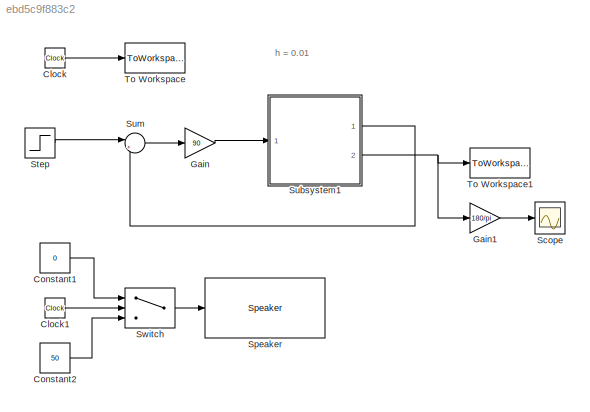
MODEL slx_ebd5c9f883c2
KIND model
CONFIG AbsTol = auto
CONFIG EnableMultiTasking = on
CONFIG FixedStep = auto
CONFIG MaxStep = auto
CONFIG MinStep = auto
CONFIG RelTol = 1e-3
CONFIG SampleTimeConstraint = Unconstrained
CONFIG Solver = ode45
CONFIG SolverName = ode45
CONFIG StartTime = 0.0
CONFIG StopTime = 10.0
BLOCK [Clock] Clock
BLOCK [Clock] Clock1
BLOCK [Constant] Constant1
  Value = 0
BLOCK [Constant] Constant2
  Value = 50
BLOCK [Gain] Gain
  Gain = 90
  OutDataTypeStr = Inherit: Inherit via internal rule
  ParamDataTypeStr = Inherit: Inherit via internal rule
  SaturateOnIntegerOverflow = off
BLOCK [Gain] Gain1
  Gain = 180/pi
  OutDataTypeStr = Inherit: Inherit via internal rule
  ParamDataTypeStr = Inherit: Inherit via internal rule
  SaturateOnIntegerOverflow = off
BLOCK [Scope] Scope
  Floating = off
  NumInputPorts = 1
  Ports = [1]
  ScopeSpecificationString = Simulink.scopes.TimeScopeBlockCfg('CurrentConfiguration', extmgr.ConfigurationSet(extmgr.Configuration('Core','General UI',true),extmgr.Configuration('Core','Source UI',true),extmgr.Configuration('Sources','WiredSimulink',true,'DataLoggingSaveFormat','StructureWithTime','DataLoggingLimitDataPoints',true,'DataLoggingDecimation','1','DataLoggingDecimateData',true),extmgr.Configuration('Visuals','Tim...<+1617ch>
BLOCK [Reference] Speaker  REF=legoev3lib/Speaker
  Ports = [1]
  SourceBlock = legoev3lib/Speaker
  SourceProductBaseCode = LEGOEV3
  SourceProductName = Simulink Support Package for LEGO MINDSTORMS EV3 Hardware
  SourceType = LEGO MINDSTORMS EV3 Speaker
BLOCK [Step] Step
  After = pi/3
  SampleTime = 0
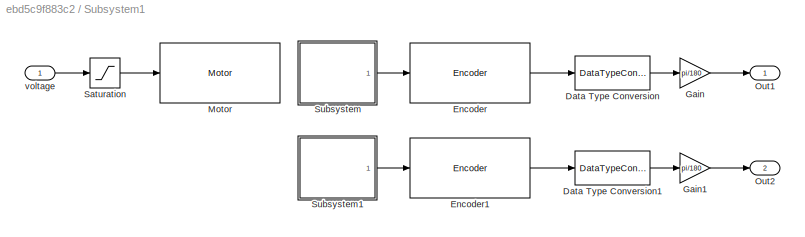
BLOCK [SubSystem] Subsystem1
  Ports = [1, 2]
  RequestExecContextInheritance = off
BLOCK [DataTypeConversion] Subsystem1/Data Type Conversion
  OutDataTypeStr = double
  RndMeth = Floor
  SaturateOnIntegerOverflow = off
BLOCK [DataTypeConversion] Subsystem1/Data Type Conversion1
  OutDataTypeStr = double
  RndMeth = Floor
  SaturateOnIntegerOverflow = off
BLOCK [Reference] Subsystem1/Encoder  REF=legoev3lib/Encoder
  Ports = [1, 1]
  SourceBlock = legoev3lib/Encoder
  SourceProductBaseCode = LEGOEV3
  SourceProductName = Simulink Support Package for LEGO MINDSTORMS EV3 Hardware
  SourceType = LEGO MINDSTORMS EV3 Encoder
BLOCK [Reference] Subsystem1/Encoder1  REF=legoev3lib/Encoder
  Ports = [1, 1]
  SourceBlock = legoev3lib/Encoder
  SourceProductBaseCode = LEGOEV3
  SourceProductName = Simulink Support Package for LEGO MINDSTORMS EV3 Hardware
  SourceType = LEGO MINDSTORMS EV3 Encoder
BLOCK [Gain] Subsystem1/Gain
  Gain = pi/180
  OutDataTypeStr = Inherit: Inherit via internal rule
  ParamDataTypeStr = Inherit: Inherit via internal rule
  SaturateOnIntegerOverflow = off
BLOCK [Gain] Subsystem1/Gain1
  Gain = pi/180
  OutDataTypeStr = Inherit: Inherit via internal rule
  ParamDataTypeStr = Inherit: Inherit via internal rule
  SaturateOnIntegerOverflow = off
BLOCK [Reference] Subsystem1/Motor  REF=legoev3lib/Motor
  Ports = [1]
  SourceBlock = legoev3lib/Motor
  SourceProductBaseCode = LEGOEV3
  SourceProductName = Simulink Support Package for LEGO MINDSTORMS EV3 Hardware
  SourceType = LEGO MINDSTORMS EV3 Motor
BLOCK [Outport] Subsystem1/Out1
  IconDisplay = Port number
BLOCK [Outport] Subsystem1/Out2
  IconDisplay = Port number
  Port = 2
BLOCK [Saturate] Subsystem1/Saturation
  InputPortMap = u0
  LowerLimit = -100
  Ports = [1, 1]
  UpperLimit = 100
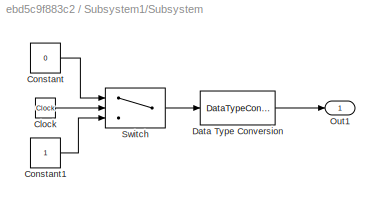
BLOCK [SubSystem] Subsystem1/Subsystem
  Ports = [0, 1]
  RequestExecContextInheritance = off
BLOCK [Clock] Subsystem1/Subsystem/Clock
BLOCK [Constant] Subsystem1/Subsystem/Constant
  Value = 0
BLOCK [Constant] Subsystem1/Subsystem/Constant1
BLOCK [DataTypeConversion] Subsystem1/Subsystem/Data Type Conversion
  OutDataTypeStr = int8
  RndMeth = Simplest
  SaturateOnIntegerOverflow = off
BLOCK [Outport] Subsystem1/Subsystem/Out1
  IconDisplay = Port number
BLOCK [Switch] Subsystem1/Subsystem/Switch
  Criteria = u2 > Threshold
  InputSameDT = off
  SaturateOnIntegerOverflow = off
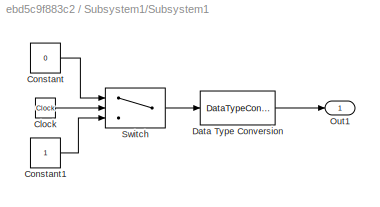
BLOCK [SubSystem] Subsystem1/Subsystem1
  Ports = [0, 1]
  RequestExecContextInheritance = off
BLOCK [Clock] Subsystem1/Subsystem1/Clock
BLOCK [Constant] Subsystem1/Subsystem1/Constant
  Value = 0
BLOCK [Constant] Subsystem1/Subsystem1/Constant1
BLOCK [DataTypeConversion] Subsystem1/Subsystem1/Data Type Conversion
  OutDataTypeStr = int8
  RndMeth = Simplest
  SaturateOnIntegerOverflow = off
BLOCK [Outport] Subsystem1/Subsystem1/Out1
  IconDisplay = Port number
BLOCK [Switch] Subsystem1/Subsystem1/Switch
  Criteria = u2 > Threshold
  InputSameDT = off
  SaturateOnIntegerOverflow = off
BLOCK [Inport] Subsystem1/voltage
  IconDisplay = Port number
BLOCK [Sum] Sum
  IconShape = round
  InputSameDT = off
  Inputs = |+-
  OutDataTypeStr = Inherit: Inherit via internal rule
  Ports = [2, 1]
  SaturateOnIntegerOverflow = off
BLOCK [Switch] Switch
  InputSameDT = off
  SaturateOnIntegerOverflow = off
  Threshold = 1
BLOCK [ToWorkspace] To Workspace
  FixptAsFi = on
  MaxDataPoints = inf
  Ports = [1]
  SampleTime = -1
  VariableName = t
BLOCK [ToWorkspace] To Workspace1
  FixptAsFi = on
  MaxDataPoints = inf
  Ports = [1]
  SampleTime = -1
  VariableName = theta1
ANNOTATION (root): h = 0.01
LINE Clock1:1 -> Switch:2
LINE Clock:1 -> To Workspace:1
LINE Constant1:1 -> Switch:1
LINE Constant2:1 -> Switch:3
LINE Gain1:1 -> Scope:1
LINE Gain:1 -> Subsystem1:1
LINE Step:1 -> Sum:1
LINE Subsystem1/Data Type Conversion1:1 -> Subsystem1/Gain1:1
LINE Subsystem1/Data Type Conversion:1 -> Subsystem1/Gain:1
LINE Subsystem1/Encoder1:1 -> Subsystem1/Data Type Conversion1:1
LINE Subsystem1/Encoder:1 -> Subsystem1/Data Type Conversion:1
LINE Subsystem1/Gain1:1 -> Subsystem1/Out2:1
LINE Subsystem1/Gain:1 -> Subsystem1/Out1:1
LINE Subsystem1/Saturation:1 -> Subsystem1/Motor:1
LINE Subsystem1/Subsystem/Clock:1 -> Subsystem1/Subsystem/Switch:2
LINE Subsystem1/Subsystem/Constant1:1 -> Subsystem1/Subsystem/Switch:3
LINE Subsystem1/Subsystem/Constant:1 -> Subsystem1/Subsystem/Switch:1
LINE Subsystem1/Subsystem/Data Type Conversion:1 -> Subsystem1/Subsystem/Out1:1
LINE Subsystem1/Subsystem/Switch:1 -> Subsystem1/Subsystem/Data Type Conversion:1
LINE Subsystem1/Subsystem1/Clock:1 -> Subsystem1/Subsystem1/Switch:2
LINE Subsystem1/Subsystem1/Constant1:1 -> Subsystem1/Subsystem1/Switch:3
LINE Subsystem1/Subsystem1/Constant:1 -> Subsystem1/Subsystem1/Switch:1
LINE Subsystem1/Subsystem1/Data Type Conversion:1 -> Subsystem1/Subsystem1/Out1:1
LINE Subsystem1/Subsystem1/Switch:1 -> Subsystem1/Subsystem1/Data Type Conversion:1
LINE Subsystem1/Subsystem1:1 -> Subsystem1/Encoder1:1
LINE Subsystem1/Subsystem:1 -> Subsystem1/Encoder:1
LINE Subsystem1/voltage:1 -> Subsystem1/Saturation:1
LINE Subsystem1:1 -> Sum:2
NET Subsystem1:2 -> Gain1:1, To Workspace1:1
LINE Sum:1 -> Gain:1
LINE Switch:1 -> Speaker:1
note: NET lines group one-source signal fan-out (src -> all destinations, sorted); 1:1 wires keep LINE
